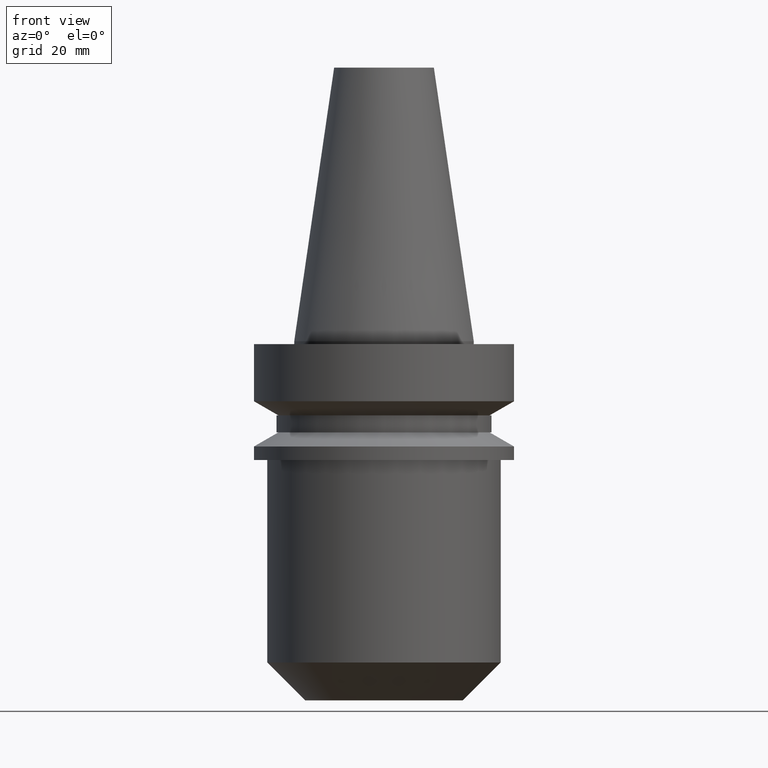
[diagram: clean part render]
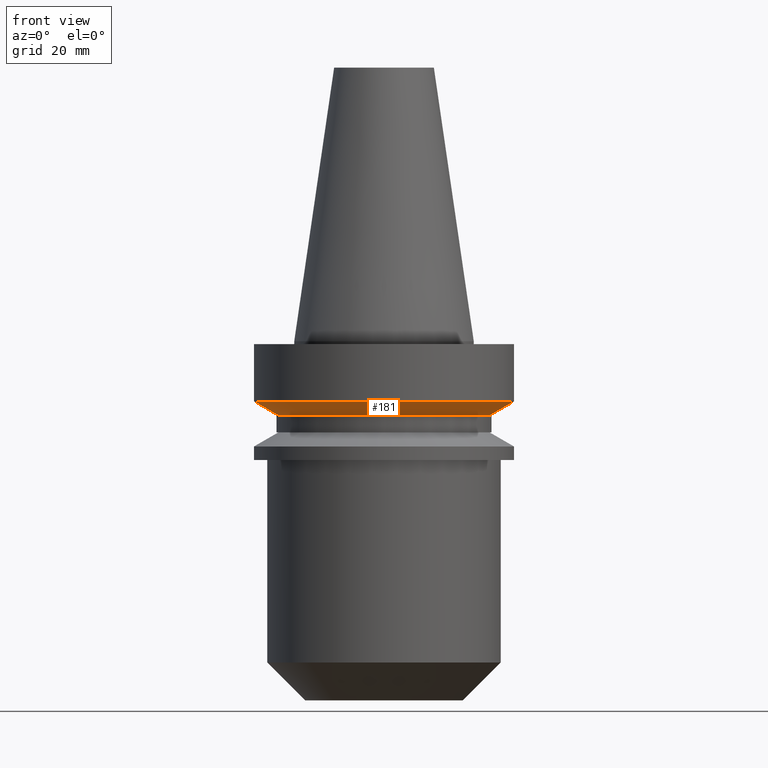
[diagram: same view with one face highlighted and labeled with its STEP entity id]
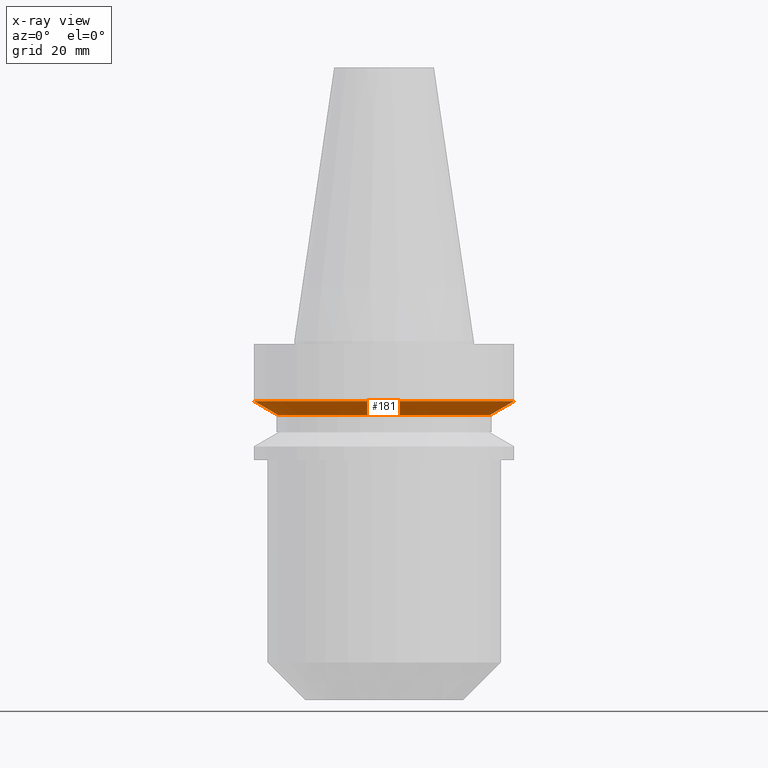
[diagram: x-ray of the same camera — body ghosted, the highlighted face saturated]
A machine part, front view. The second image highlights one B-rep face of the part: STEP entity #181.
The next image is the same camera in x-ray: the body ghosted, the highlighted face saturated — about 0% of this face is hidden behind the body in this view.
In plain terms, the highlighted conical surface has half-angle 60 deg.
Its self-contained STEP definition (entity closure, byte-faithful):
#6 = DIRECTION ( 'NONE',  ( 1.000000000000000000, 0.000000000000000000, 0.000000000000000000 ) ) ;
#11 = FACE_OUTER_BOUND ( 'NONE', #139, .T. ) ;
#43 = EDGE_CURVE ( 'NONE', #201, #729, #219, .T. ) ;
#68 = EDGE_CURVE ( 'NONE', #729, #133, #661, .T. ) ;
#133 = VERTEX_POINT ( 'NONE', #545 ) ;
#139 = EDGE_LOOP ( 'NONE', ( #252, #280, #258, #300 ) ) ;
#146 = AXIS2_PLACEMENT_3D ( 'NONE', #250, #436, #539 ) ;
#181 = ADVANCED_FACE ( 'NONE', ( #11 ), #260, .T. ) ;
#192 = CARTESIAN_POINT ( 'NONE',  ( -18.66962701892216359, 2.551528767519355189E-15, -13.10028401263362063 ) ) ;
#201 = VERTEX_POINT ( 'NONE', #192 ) ;
#219 = LINE ( 'NONE', #467, #685 ) ;
#250 = CARTESIAN_POINT ( 'NONE',  ( 0.000000000000000000, 0.000000000000000000, -13.10028401263362063 ) ) ;
#252 = ORIENTED_EDGE ( 'NONE', *, *, #43, .F. ) ;
#258 = ORIENTED_EDGE ( 'NONE', *, *, #595, .T. ) ;
#260 = CONICAL_SURFACE ( 'NONE', #146, 18.66962701892216359, 1.047197551196590082 ) ;
#270 = DIRECTION ( 'NONE',  ( -0.000000000000000000, -0.000000000000000000, 1.000000000000000000 ) ) ;
#280 = ORIENTED_EDGE ( 'NONE', *, *, #324, .T. ) ;
#300 = ORIENTED_EDGE ( 'NONE', *, *, #68, .F. ) ;
#324 = EDGE_CURVE ( 'NONE', #201, #735, #428, .T. ) ;
#347 = AXIS2_PLACEMENT_3D ( 'NONE', #691, #637, #6 ) ;
#390 = DIRECTION ( 'NONE',  ( 1.000000000000000000, 0.000000000000000000, 0.000000000000000000 ) ) ;
#428 = CIRCLE ( 'NONE', #698, 18.66962701892216359 ) ;
#436 = DIRECTION ( 'NONE',  ( -0.000000000000000000, -0.000000000000000000, 1.000000000000000000 ) ) ;
#467 = CARTESIAN_POINT ( 'NONE',  ( -18.66962701892216359, 2.286369896999797237E-15, -13.10028401263362063 ) ) ;
#473 = DIRECTION ( 'NONE',  ( 0.8660254037844348218, 0.000000000000000000, 0.5000000000000066613 ) ) ;
#474 = DIRECTION ( 'NONE',  ( -0.8660254037844348218, 1.060575238724902231E-16, 0.5000000000000066613 ) ) ;
#539 = DIRECTION ( 'NONE',  ( 1.000000000000000000, 0.000000000000000000, 0.000000000000000000 ) ) ;
#545 = CARTESIAN_POINT ( 'NONE',  ( 23.00000000000000711, 0.000000000000000000, -10.60014200631680126 ) ) ;
#551 = CARTESIAN_POINT ( 'NONE',  ( 18.66962701892216359, 0.000000000000000000, -13.10028401263362063 ) ) ;
#561 = CARTESIAN_POINT ( 'NONE',  ( -23.00000000000000711, 2.816687638038913141E-15, -10.60014200631680126 ) ) ;
#595 = EDGE_CURVE ( 'NONE', #735, #133, #715, .T. ) ;
#623 = CARTESIAN_POINT ( 'NONE',  ( 18.66962701892216359, 0.000000000000000000, -13.10028401263362063 ) ) ;
#637 = DIRECTION ( 'NONE',  ( -0.000000000000000000, -0.000000000000000000, 1.000000000000000000 ) ) ;
#661 = CIRCLE ( 'NONE', #347, 23.00000000000000711 ) ;
#683 = CARTESIAN_POINT ( 'NONE',  ( 0.000000000000000000, 0.000000000000000000, -13.10028401263362063 ) ) ;
#685 = VECTOR ( 'NONE', #474, 1000.000000000000000 ) ;
#687 = VECTOR ( 'NONE', #473, 1000.000000000000000 ) ;
#691 = CARTESIAN_POINT ( 'NONE',  ( 0.000000000000000000, 0.000000000000000000, -10.60014200631680126 ) ) ;
#698 = AXIS2_PLACEMENT_3D ( 'NONE', #683, #270, #390 ) ;
#715 = LINE ( 'NONE', #551, #687 ) ;
#729 = VERTEX_POINT ( 'NONE', #561 ) ;
#735 = VERTEX_POINT ( 'NONE', #623 ) ;